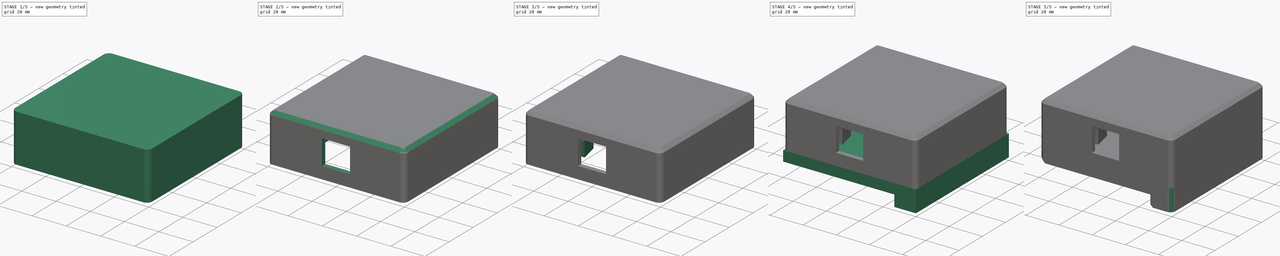
[diagram: build sequence overview — one tinted view per stage of 5, left to right]
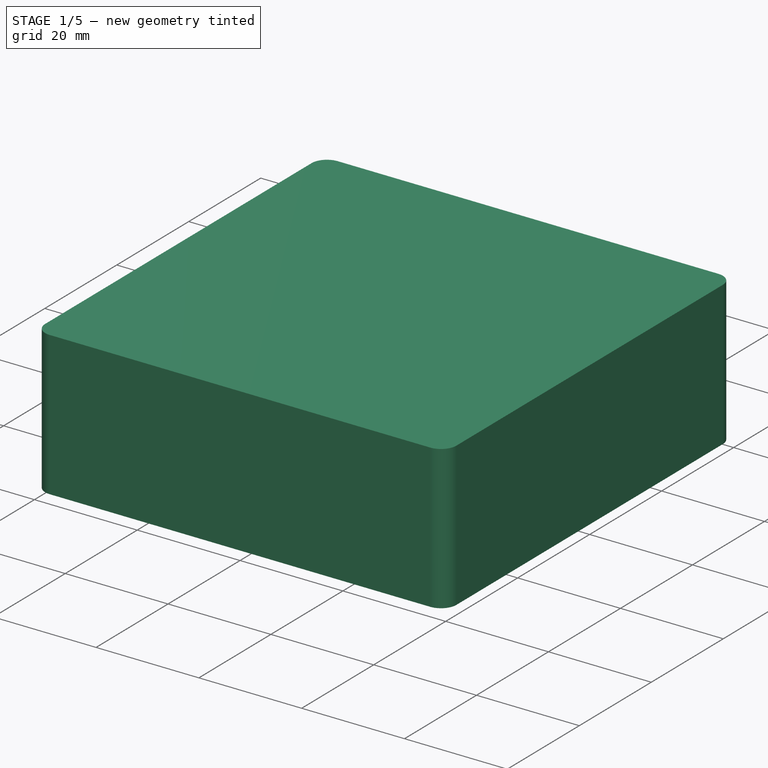
[diagram: stage 1 of 5 — iso view after this stage's code; geometry added in this stage tinted green]
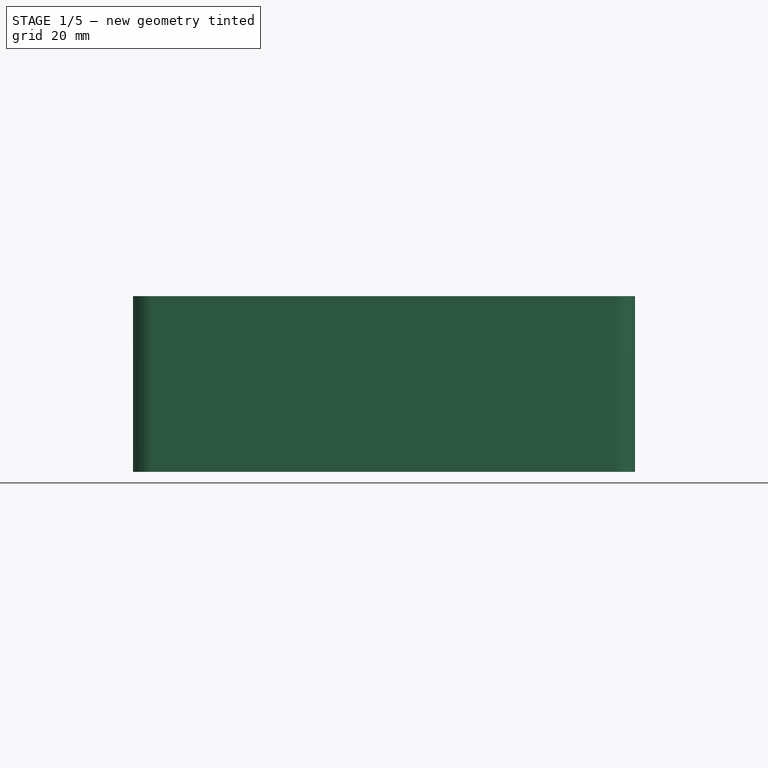
[diagram: stage 1 of 5 — front view after this stage's code; geometry added in this stage tinted green]
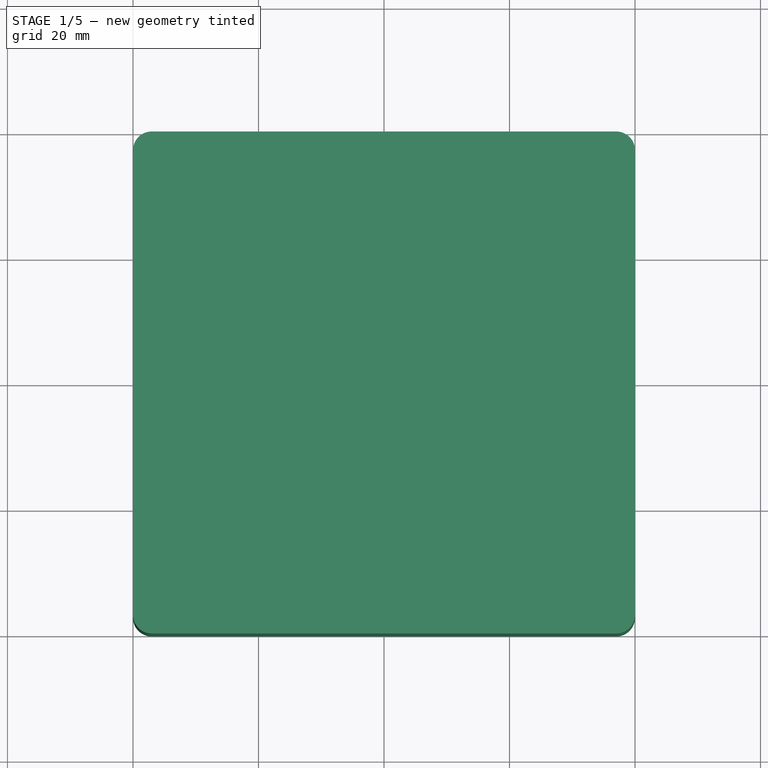
[diagram: stage 1 of 5 — top view after this stage's code; geometry added in this stage tinted green]
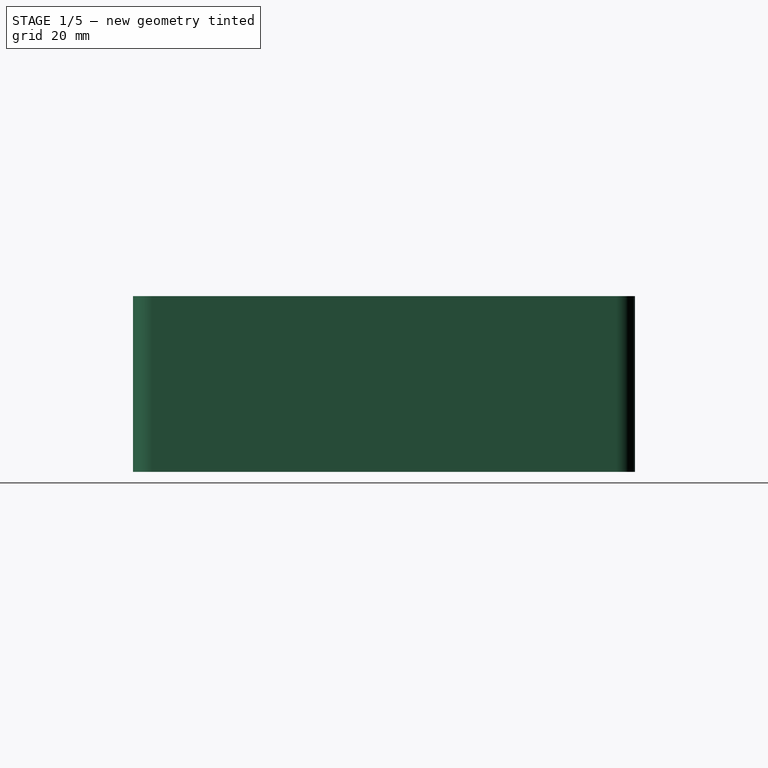
[diagram: stage 1 of 5 — right view after this stage's code; geometry added in this stage tinted green]
FCSTD DOCUMENT  (FreeCAD 0.19R22846 (Git))
Label: netzwerk_dose
License: All rights reserved
LicenseURL: http://en.wikipedia.org/wiki/All_rights_reserved
objects: Sketcher::SketchObject×15, PartDesign::Pad×7, PartDesign::Pocket×6, PartDesign::Chamfer×4, PartDesign::Fillet×3, PartDesign::Mirrored×3, PartDesign::PolarPattern×2, PartDesign::Body×2, PartDesign::SubtractivePipe×1
note: 64 computed .brp shape members not serialized (recipe doc carries the construction recipe); baked Part::Feature solids carry a one-line shape summary decoded from their .brp

FEATURE [Sketcher::SketchObject] Sketch003  label="sk_basis_deckel"
  MapMode = 5
  Support = -> [XY_Plane001]
  sketch-geometry (4):
    g0: LineSegment StartX=-40 StartY=40 StartZ=0 EndX=40 EndY=40 EndZ=0
    g1: LineSegment StartX=40 StartY=40 StartZ=0 EndX=40 EndY=-40 EndZ=0
    g2: LineSegment StartX=40 StartY=-40 StartZ=0 EndX=-40 EndY=-40 EndZ=0
    g3: LineSegment StartX=-40 StartY=-40 StartZ=0 EndX=-40 EndY=40 EndZ=0
  constraints (11):
    c: Coincident(g0,g1)
    c: Coincident(g1,g2)
    c: Coincident(g2,g3)
    c: Coincident(g3,g0)
    c: Horizontal(g0)
    c: Horizontal(g2)
    c: Vertical(g1)
    c: Vertical(g3)
    c: Equal(g3,g0)
    c: DistanceX(g0,g0) = 80
    c: Symmetric(g0,g1,g-1)
FEATURE [PartDesign::Pad] Pad002  label="deckel_block"
  Direction = (1,1,1)
  Length = 28
  Length2 = 100
  Profile = -> Sketch003
  Refine = true
  Type = 0
FEATURE [Sketcher::SketchObject] Sketch004  label="sk_deckel_loch"
  MapMode = 5
  Support = -> [XY_Plane001]
  sketch-geometry (4):
    g0: LineSegment StartX=-37.25 StartY=37.25 StartZ=0 EndX=37.25 EndY=37.25 EndZ=0
    g1: LineSegment StartX=37.25 StartY=37.25 StartZ=0 EndX=37.25 EndY=-37.25 EndZ=0
    g2: LineSegment StartX=37.25 StartY=-37.25 StartZ=0 EndX=-37.25 EndY=-37.25 EndZ=0
    g3: LineSegment StartX=-37.25 StartY=-37.25 StartZ=0 EndX=-37.25 EndY=37.25 EndZ=0
  constraints (11):
    c: Coincident(g0,g1)
    c: Coincident(g1,g2)
    c: Coincident(g2,g3)
    c: Coincident(g3,g0)
    c: Horizontal(g0)
    c: Horizontal(g2)
    c: Vertical(g1)
    c: Vertical(g3)
    c: Equal(g3,g0)
    c: DistanceX(g0,g0) = 74.5
    c: Symmetric(g0,g1,g-1)
FEATURE [PartDesign::Pocket] Pocket001  label="deckel_hohl"
  BaseFeature = -> Pad002
  Length = 25
  Length2 = 100
  Profile = -> Sketch004
  Refine = true
  Reversed = true
  Type = 0
FEATURE [Sketcher::SketchObject] Sketch005  label="sk_einschnapp_rille"
  ExternalGeometry = -> [Pocket001]
  MapMode = 5
  Placement = pos=(0,0,0) rot=(1,0,0;1.5708rad)
  Support = -> [XZ_Plane001]
  sketch-geometry (2):
    g0: ArcOfCircle CenterX=37.05 CenterY=2.95 CenterZ=0 NormalX=0 NormalY=0 NormalZ=1 AngleXU=0 Radius=0.776209 StartAngle=4.97299 EndAngle=7.59338
    g1: LineSegment StartX=37.25 StartY=3.7 StartZ=0 EndX=37.25 EndY=2.2 EndZ=0
  constraints (7):
    c: PointOnObject(g0,g-3)
    c: PointOnObject(g0,g-3)
    c: DistanceY(g0) = 3.7
    c: DistanceY(g0) = 2.2
    c: DistanceX(g0,g0) = 0.2
    c: Coincident(g1,g0)
    c: Coincident(g1,g0)
FEATURE [PartDesign::Pocket] Pocket002  label="1_einschnapprille"
  BaseFeature = -> Pocket001
  Length = 30
  Length2 = 100
  Midplane = true
  Profile = -> Sketch005
  Refine = true
  Type = 0
FEATURE [PartDesign::PolarPattern] PolarPattern001  label="4_einschnapprille"
  Angle = 360
  Axis = -> Z_Axis001
  BaseFeature = -> Pocket002
  Occurrences = 4
  Originals = -> [Pocket002]
  Refine = true
FEATURE [PartDesign::Fillet] Fillet001  label="verrundung_deckel"
  Base = -> PolarPattern001 [Edge1,Edge5,Edge2,Edge8]
  BaseFeature = -> PolarPattern001
  Radius = 3
  Refine = true
  SupportTransform = false
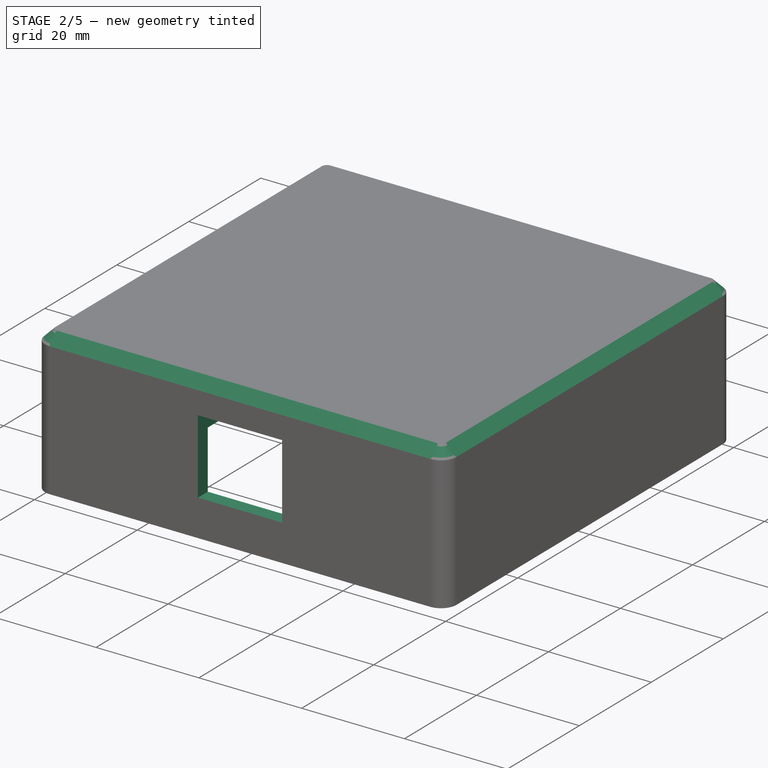
[diagram: stage 2 of 5 — iso view after this stage's code; geometry added in this stage tinted green]
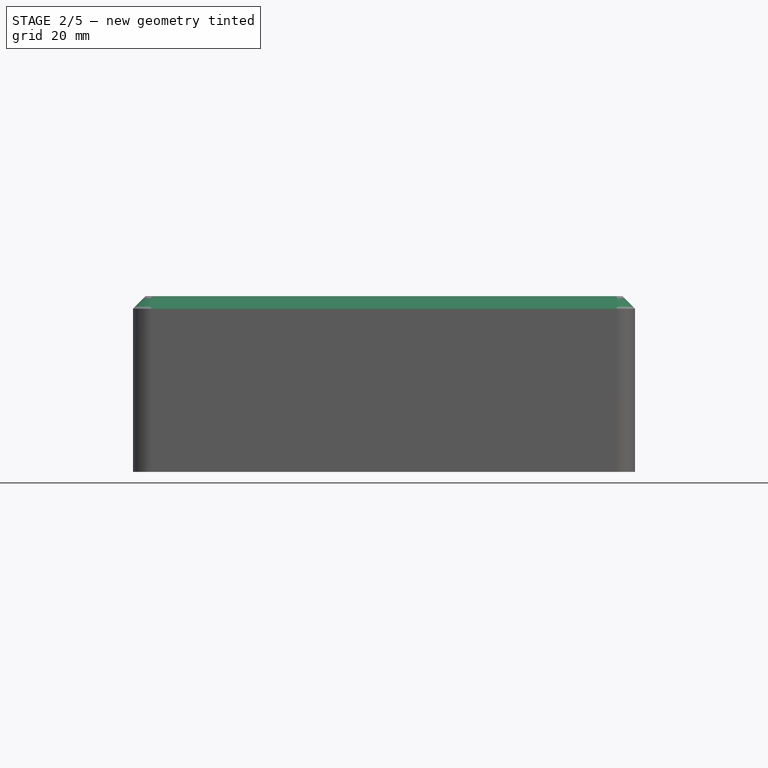
[diagram: stage 2 of 5 — front view after this stage's code; geometry added in this stage tinted green]
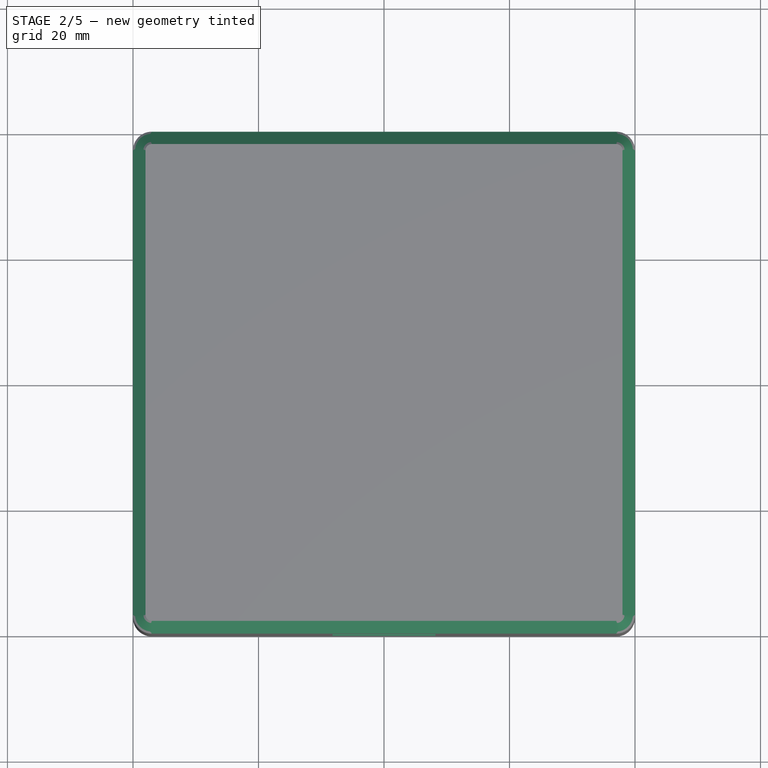
[diagram: stage 2 of 5 — top view after this stage's code; geometry added in this stage tinted green]
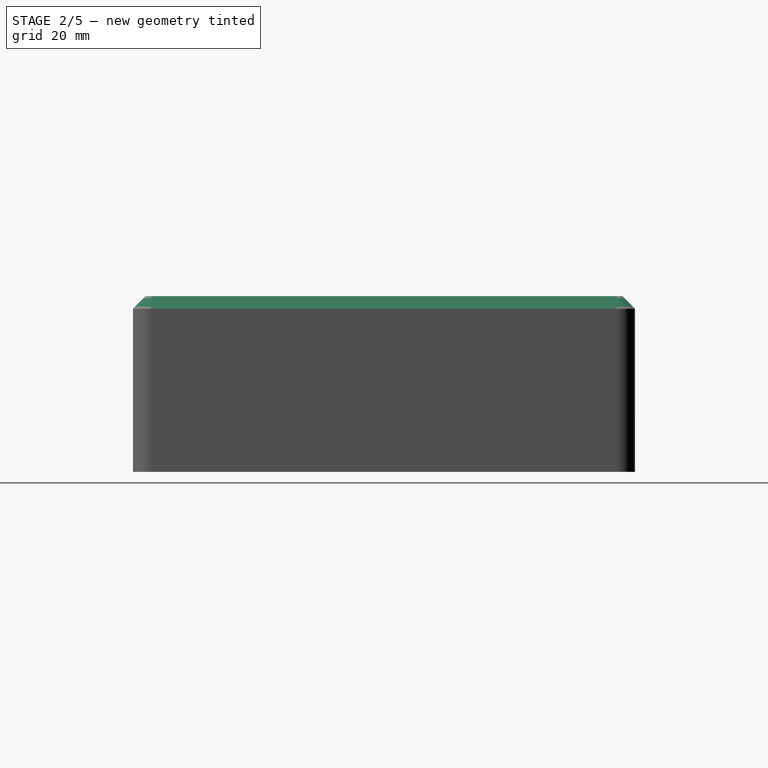
[diagram: stage 2 of 5 — right view after this stage's code; geometry added in this stage tinted green]
FEATURE [PartDesign::Chamfer] Chamfer001  label="phase_deckel"
  Angle = 45
  Base = -> Fillet001 [Face5]
  BaseFeature = -> Fillet001
  ChamferType = 0
  FlipDirection = false
  Refine = true
  Size = 2
  Size2 = 1
  SupportTransform = false
FEATURE [Sketcher::SketchObject] Sketch010  label="sk_buchse"
  ExternalGeometry = -> [Chamfer001]
  MapMode = 5
  Placement = pos=(0,-37.25,0) rot=(0,0.707107,0.707107;3.14159rad)
  Support = -> [Chamfer001]
  sketch-geometry (8):
    g0: LineSegment StartX=-8.2 StartY=7.1 StartZ=0 EndX=8.2 EndY=7.1 EndZ=0
    g1: LineSegment StartX=8.2 StartY=7.1 StartZ=0 EndX=8.2 EndY=21.6 EndZ=0
    g2: LineSegment StartX=8.2 StartY=21.6 StartZ=0 EndX=-8.2 EndY=21.6 EndZ=0
    g3: LineSegment StartX=-8.2 StartY=21.6 StartZ=0 EndX=-8.2 EndY=7.1 EndZ=0
    g4: GeomPoint X=0 Y=25 Z=0
    g5: LineSegment [constr] StartX=-8.2 StartY=7.1 StartZ=0 EndX=8.2 EndY=21.6 EndZ=0
    g6: GeomPoint X=0 Y=14.35 Z=0
    g7: GeomPoint X=0 Y=3.7 Z=0
  constraints (19):
    c: Coincident(g0,g1)
    c: Coincident(g1,g2)
    c: Coincident(g2,g3)
    c: Coincident(g3,g0)
    c: Horizontal(g2)
    c: Vertical(g1)
    c: Vertical(g3)
    c: Distance(g3) = 14.5
    c: Distance(g0) = 16.4
    c: Symmetric(g0,g0,g-2)
    c: PointOnObject(g4,g-3)
    c: PointOnObject(g4,g-2)
    c: Coincident(g5,g0)
    c: Coincident(g5,g1)
    c: PointOnObject(g6,g5)
    c: PointOnObject(g6,g-2)
    c: PointOnObject(g7,g-4)
    c: Symmetric(g7,g4,g6)
    c: DistanceY(g1,g4) = 3.4
FEATURE [PartDesign::Pocket] Pocket003  label="buchse"
  BaseFeature = -> Chamfer001
  Length = 5
  Length2 = 100
  Profile = -> Sketch010
  Refine = true
  Type = 1
FEATURE [Sketcher::SketchObject] Sketch011  label="sk_podest_stecker"
  ExternalGeometry = -> [Pocket003]
  MapMode = 5
  Placement = pos=(0,0,25) rot=(1,0,0;3.14159rad)
  Support = -> [Pocket003]
  sketch-geometry (8):
    g0: LineSegment StartX=-9.9 StartY=37.25 StartZ=0 EndX=9.9 EndY=37.25 EndZ=0
    g1: LineSegment StartX=9.9 StartY=37.25 StartZ=0 EndX=9.9 EndY=23.25 EndZ=0
    g2: LineSegment StartX=9.9 StartY=23.25 StartZ=0 EndX=-9.9 EndY=23.25 EndZ=0
    g3: LineSegment StartX=-9.9 StartY=23.25 StartZ=0 EndX=-9.9 EndY=37.25 EndZ=0
    g4: LineSegment StartX=-9.9 StartY=18.25 StartZ=0 EndX=9.9 EndY=18.25 EndZ=0
    g5: LineSegment StartX=9.9 StartY=18.25 StartZ=0 EndX=9.9 EndY=15.25 EndZ=0
    g6: LineSegment StartX=9.9 StartY=15.25 StartZ=0 EndX=-9.9 EndY=15.25 EndZ=0
    g7: LineSegment StartX=-9.9 StartY=15.25 StartZ=0 EndX=-9.9 EndY=18.25 EndZ=0
  constraints (23):
    c: Coincident(g0,g1)
    c: Coincident(g1,g2)
    c: Coincident(g2,g3)
    c: Coincident(g3,g0)
    c: Horizontal(g2)
    c: Vertical(g1)
    c: Vertical(g3)
    c: Symmetric(g0,g0,g-2)
    c: PointOnObject(g0,g-3)
    c: DistanceX(g2,g2) = 19.8
    c: DistanceY(g1,g1) = 14
    c: Coincident(g4,g5)
    c: Coincident(g5,g6)
    c: Coincident(g6,g7)
    c: Coincident(g7,g4)
    c: Horizontal(g4)
    c: Horizontal(g6)
    c: Vertical(g5)
    c: Vertical(g7)
    c: Equal(g4,g2)
    c: Vertical(g4,g2)
    c: DistanceY(g5,g0) = 22
    c: DistanceY(g6,g4) = 3
FEATURE [PartDesign::Pad] Pad003  label="podest_stecker"
  BaseFeature = -> Pocket003
  Direction = (1,1,1)
  Length = 1.5
  Length2 = 100
  Profile = -> Sketch011
  Refine = true
  Type = 0
FEATURE [Sketcher::SketchObject] Sketch012  label="sk_kabelbinder"
  ExternalGeometry = -> [Pad003]
  MapMode = 5
  Placement = pos=(0,0,25) rot=(1,0,0;3.14159rad)
  Support = -> [Pad003]
  sketch-geometry (4):
    g0: LineSegment StartX=-17.4 StartY=37.25 StartZ=0 EndX=-9.9 EndY=37.25 EndZ=0
    g1: LineSegment StartX=-9.9 StartY=37.25 StartZ=0 EndX=-9.9 EndY=15.25 EndZ=0
    g2: LineSegment StartX=-9.9 StartY=15.25 StartZ=0 EndX=-17.4 EndY=15.25 EndZ=0
    g3: LineSegment StartX=-17.4 StartY=15.25 StartZ=0 EndX=-17.4 EndY=37.25 EndZ=0
  constraints (11):
    c: Coincident(g0,g1)
    c: Coincident(g1,g2)
    c: Coincident(g2,g3)
    c: Coincident(g3,g0)
    c: Horizontal(g0)
    c: Horizontal(g2)
    c: Vertical(g1)
    c: Vertical(g3)
    c: DistanceY(g3,g3) = 22
    c: DistanceX(g2,g2) = 7.5
    c: Coincident(g-3,g0)
FEATURE [PartDesign::Pad] Pad004  label="pad_kabelbinder"
  BaseFeature = -> Pad003
  Direction = (1,1,1)
  Length = 8
  Length2 = 100
  Profile = -> Sketch012
  Refine = true
  Type = 0
FEATURE [PartDesign::Mirrored] Mirrored  label="2_pad_kabelbinder"
  BaseFeature = -> Pad004
  MirrorPlane = -> Sketch012 [V_Axis]
  Originals = -> [Pad004]
  Refine = true
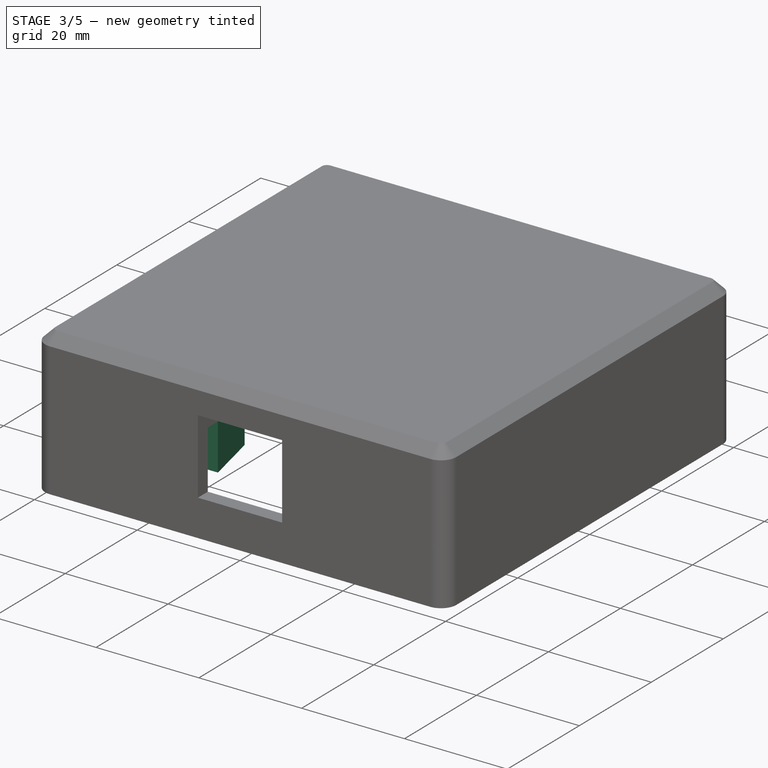
[diagram: stage 3 of 5 — iso view after this stage's code; geometry added in this stage tinted green]
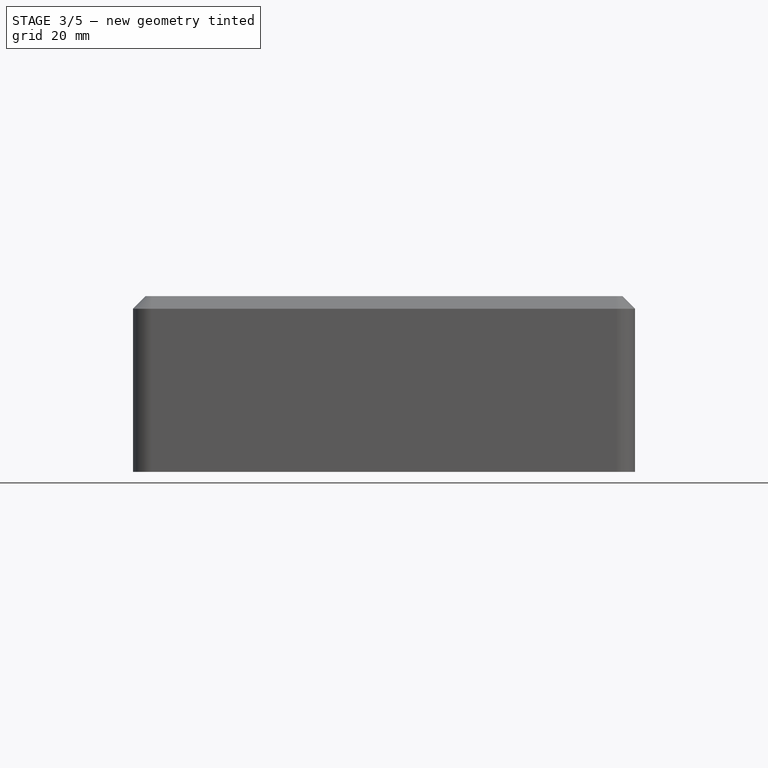
[diagram: stage 3 of 5 — front view after this stage's code; geometry added in this stage tinted green]
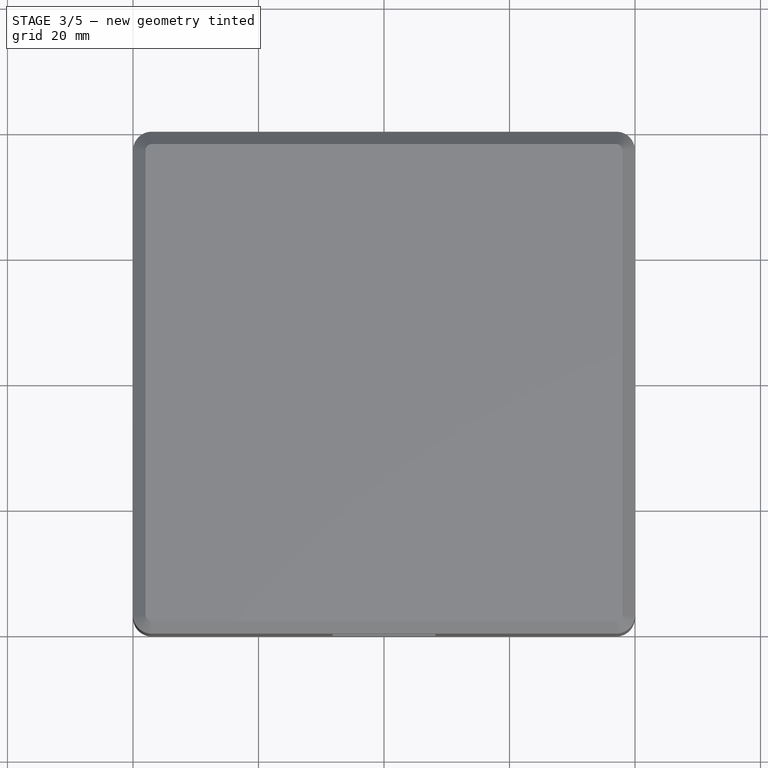
[diagram: stage 3 of 5 — top view after this stage's code; geometry added in this stage tinted green]
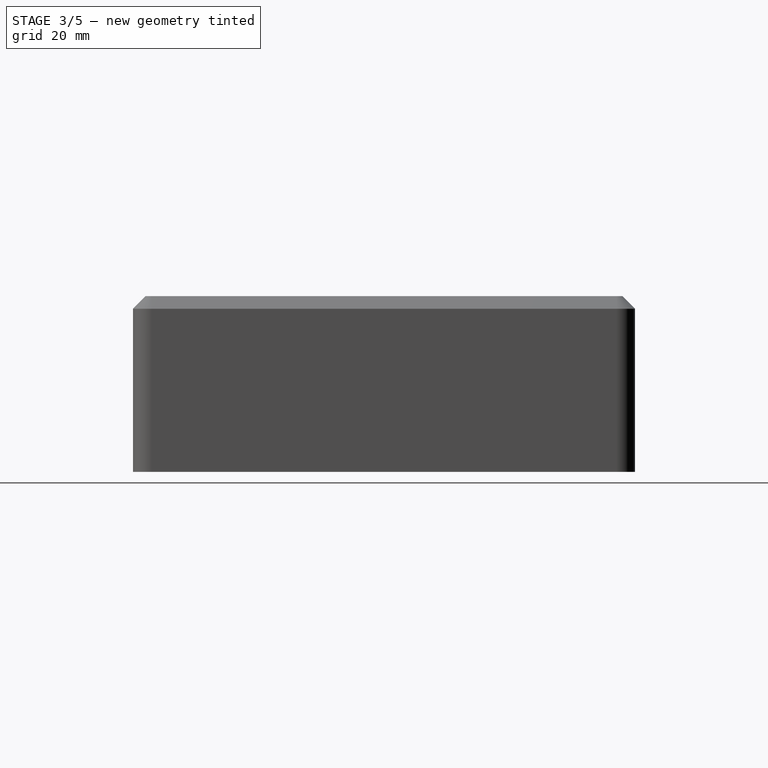
[diagram: stage 3 of 5 — right view after this stage's code; geometry added in this stage tinted green]
FEATURE [PartDesign::Body] Body  label="basis"
  Group = -> [Sketch,Pad,Sketch001,Pad001,PolarPattern,Sketch006,Pocket,Sketch008,Sketch009,SubtractivePipe,Chamfer,Fillet,Chamfer002,Sketch014,Pad005,Fillet003]
  Origin = -> Origin
  Tip = -> Fillet003
FEATURE [Sketcher::SketchObject] Sketch015  label="sk_durchfuehrung_kabelbinder"
  ExternalGeometry = -> [Mirrored]
  MapMode = 5
  Placement = pos=(0,0,0) rot=(0.57735,0.57735,0.57735;2.0944rad)
  Support = -> [YZ_Plane001]
  sketch-geometry (4):
    g0: LineSegment StartX=-23.25 StartY=25 StartZ=0 EndX=-18.25 EndY=25 EndZ=0
    g1: LineSegment StartX=-18.25 StartY=25 StartZ=0 EndX=-18.25 EndY=22.5 EndZ=0
    g2: LineSegment StartX=-18.25 StartY=22.5 StartZ=0 EndX=-23.25 EndY=22.5 EndZ=0
    g3: LineSegment StartX=-23.25 StartY=22.5 StartZ=0 EndX=-23.25 EndY=25 EndZ=0
  constraints (10):
    c: Coincident(g0,g1)
    c: Coincident(g1,g2)
    c: Coincident(g2,g3)
    c: Coincident(g3,g0)
    c: Horizontal(g2)
    c: Vertical(g1)
    c: Vertical(g3)
    c: Coincident(g0,g-3)
    c: Coincident(g0,g-4)
    c: DistanceY(g1,g1) = 2.5
FEATURE [Sketcher::SketchObject] Sketch016  label="sk_clip"
  MapMode = 5
  Placement = pos=(0,0,25) rot=(1,0,0;3.14159rad)
  sketch-geometry (6):
    g0: LineSegment StartX=-17.4 StartY=21 StartZ=0 EndX=-17.4 EndY=40 EndZ=0
    g1: LineSegment StartX=-17.4 StartY=40 StartZ=0 EndX=-13.2 EndY=40 EndZ=0
    g2: LineSegment StartX=-17.4 StartY=21 StartZ=0 EndX=-12.4 EndY=21 EndZ=0
    g3: LineSegment StartX=-9.9 StartY=32 StartZ=0 EndX=-13.2 EndY=32 EndZ=0
    g4: LineSegment StartX=-13.2 StartY=32 StartZ=0 EndX=-13.2 EndY=40 EndZ=0
    g5: LineSegment StartX=-12.4 StartY=21 StartZ=0 EndX=-9.9 EndY=32 EndZ=0
  constraints (18):
    c: Coincident(g0,g1)
    c: Horizontal(g1)
    c: Vertical(g0)
    c: DistanceX(g3,g-1) = 9.9
    c: Coincident(g2,g0)
    c: Horizontal(g2)
    c: Horizontal(g3)
    c: Coincident(g3,g4)
    c: Coincident(g4,g1)
    c: Vertical(g4)
    c: DistanceX(g0,g-1) = 17.4
    c: Coincident(g2,g5)
    c: DistanceY(g1) = 40
    c: DistanceX(g2,g2) = 5
    c: DistanceY(g4,g4) = 8
    c: DistanceY(g0,g0) = 19
    c: DistanceX(g1,g1) = 4.2
    c: Coincident(g5,g3)
FEATURE [PartDesign::Pad] Pad006  label="clip"
  BaseFeature = -> Mirrored
  Direction = (1,1,1)
  Length = 17
  Length2 = 100
  Profile = -> Sketch016
  Refine = true
  Type = 0
FEATURE [PartDesign::Chamfer] Chamfer003  label="phase_clip"
  Angle = 45
  Base = -> Pad006 [Edge127]
  BaseFeature = -> Pad006
  ChamferType = 0
  FlipDirection = false
  Refine = true
  Size = 2
  Size2 = 1
  SupportTransform = false
FEATURE [PartDesign::Mirrored] Mirrored001  label="2_clip"
  BaseFeature = -> Chamfer003
  MirrorPlane = -> Sketch016 [V_Axis]
  Originals = -> [Pad006]
  Refine = true
FEATURE [PartDesign::Mirrored] Mirrored002  label="2_phase_clip"
  BaseFeature = -> Mirrored001
  MirrorPlane = -> YZ_Plane001
  Originals = -> [Chamfer003]
  Refine = true
FEATURE [PartDesign::Pocket] Pocket004  label="loch_kabelbinder"
  BaseFeature = -> Mirrored002
  Length = 50
  Length2 = 100
  Midplane = true
  Profile = -> Sketch015
  Refine = true
  Type = 0
FEATURE [Sketcher::SketchObject] Sketch017  label="sk_aussparung_stecker"
  ExternalGeometry = -> [Pocket004]
  MapMode = 5
  Placement = pos=(0,0,17) rot=(1,0,0;3.14159rad)
  Support = -> [Pocket004]
  sketch-geometry (6):
    g0: LineSegment StartX=-9.9 StartY=32 StartZ=0 EndX=-13.7068 EndY=15.25 EndZ=0
    g1: LineSegment StartX=-13.7068 StartY=15.25 StartZ=0 EndX=-9.9 EndY=15.25 EndZ=0
    g2: LineSegment StartX=-9.9 StartY=15.25 StartZ=0 EndX=-9.9 EndY=32 EndZ=0
    g3: LineSegment StartX=9.9 StartY=32 StartZ=0 EndX=9.9 EndY=15.25 EndZ=0
    g4: LineSegment StartX=9.9 StartY=15.25 StartZ=0 EndX=13.7068 EndY=15.25 EndZ=0
    g5: LineSegment StartX=13.7068 StartY=15.25 StartZ=0 EndX=9.9 EndY=32 EndZ=0
  constraints (14):
    c: Coincident(g-4,g0)
    c: Coincident(g0,g1)
    c: Coincident(g1,g-3)
    c: Horizontal(g1)
    c: Coincident(g1,g2)
    c: Coincident(g2,g0)
    c: PointOnObject(g-4,g0)
    c: Coincident(g-6,g3)
    c: Coincident(g3,g-5)
    c: Coincident(g3,g4)
    c: Horizontal(g4)
    c: Coincident(g4,g5)
    c: Coincident(g5,g3)
    c: PointOnObject(g-6,g5)
FEATURE [PartDesign::Pocket] Pocket005  label="aussparung_stecker"
  BaseFeature = -> Pocket004
  Length = 0
  Length2 = 100
  Profile = -> Sketch017
  Refine = true
  Type = 3
  UpToFace = -> Pocket004 [Face16]
FEATURE [PartDesign::Body] Body001  label="deckel"
  Group = -> [Sketch003,Pad002,Sketch004,Pocket001,Sketch005,Pocket002,PolarPattern001,Fillet001,Chamfer001,Sketch010,Pocket003,Sketch011,Pad003,Sketch012,Pad004,Mirrored,Sketch015,Sketch016,Pad006,Chamfer003,Mirrored001,Mirrored002,Pocket004,Sketch017,Pocket005]
  Origin = -> Origin001
  Tip = -> Pocket005
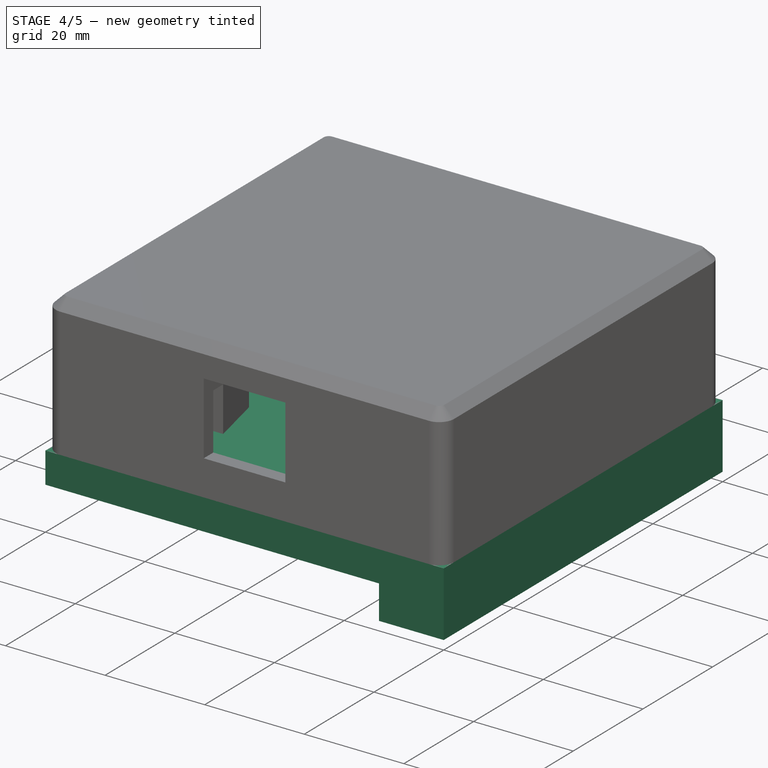
[diagram: stage 4 of 5 — iso view after this stage's code; geometry added in this stage tinted green]
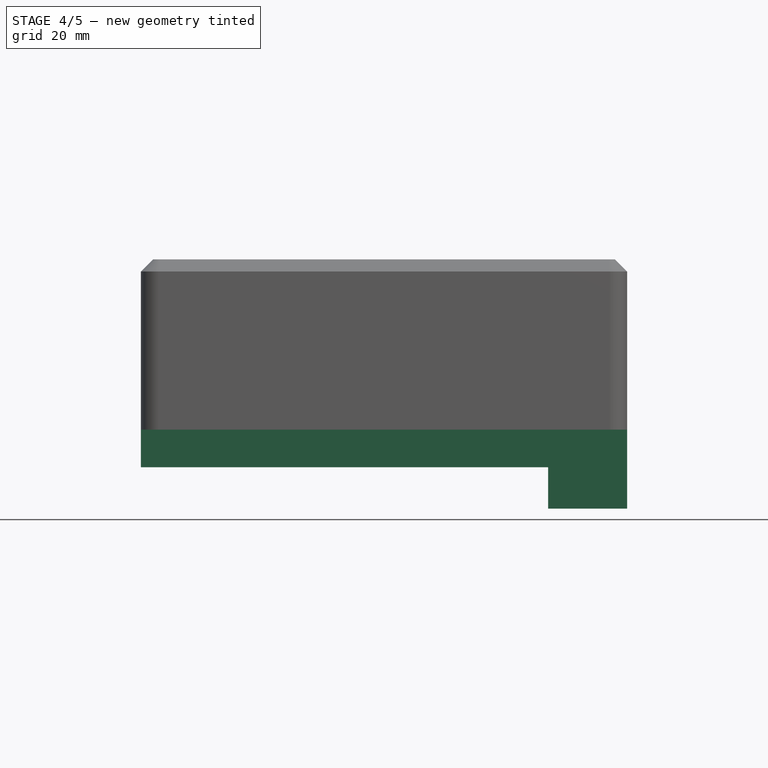
[diagram: stage 4 of 5 — front view after this stage's code; geometry added in this stage tinted green]
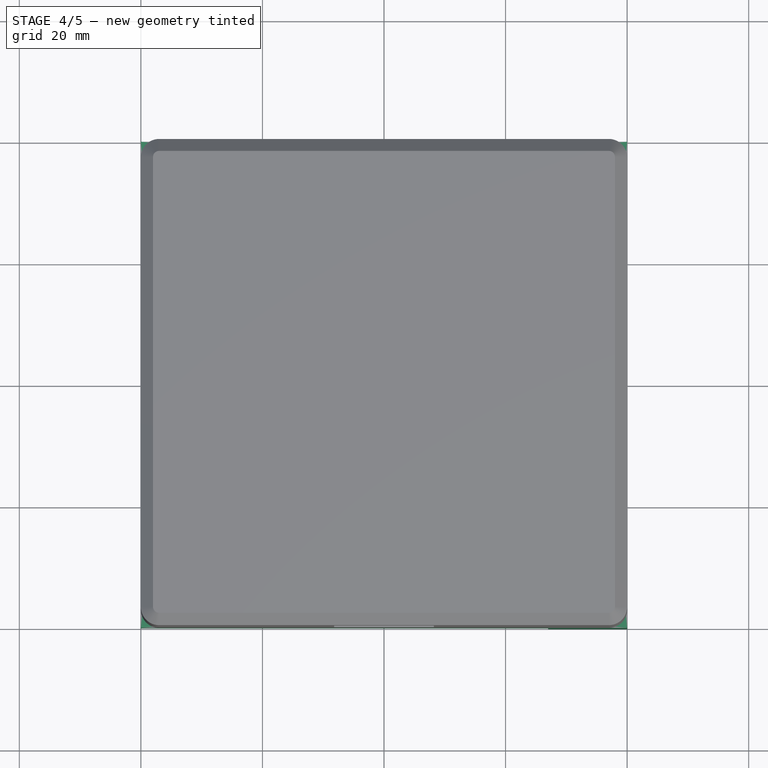
[diagram: stage 4 of 5 — top view after this stage's code; geometry added in this stage tinted green]
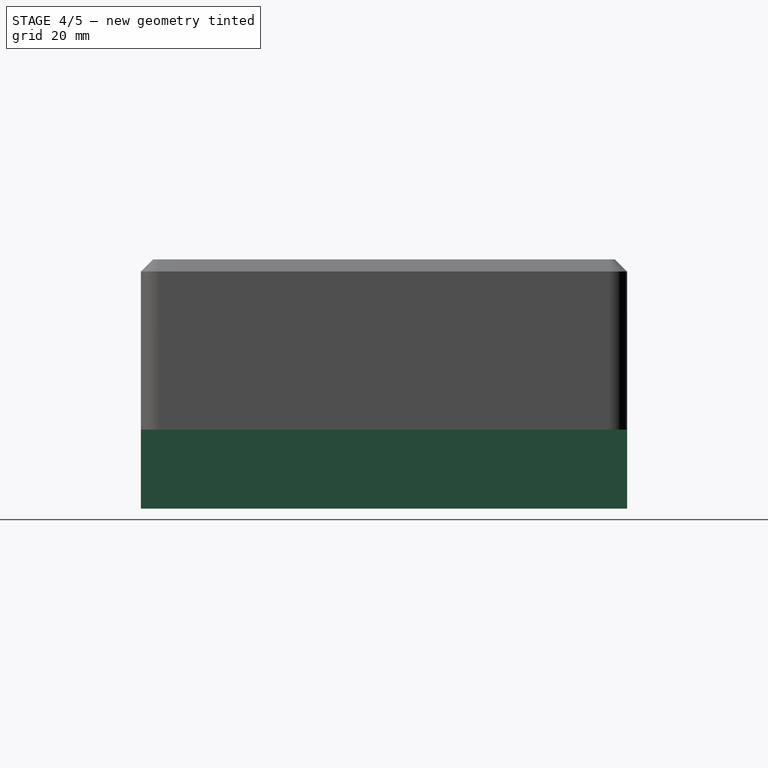
[diagram: stage 4 of 5 — right view after this stage's code; geometry added in this stage tinted green]
FEATURE [Sketcher::SketchObject] Sketch  label="sk_boden"
  MapMode = 5
  Support = -> [XY_Plane]
  sketch-geometry (4):
    g0: LineSegment StartX=-40 StartY=40 StartZ=0 EndX=40 EndY=40 EndZ=0
    g1: LineSegment StartX=40 StartY=40 StartZ=0 EndX=40 EndY=-40 EndZ=0
    g2: LineSegment StartX=40 StartY=-40 StartZ=0 EndX=-40 EndY=-40 EndZ=0
    g3: LineSegment StartX=-40 StartY=-40 StartZ=0 EndX=-40 EndY=40 EndZ=0
  constraints (11):
    c: Coincident(g0,g1)
    c: Coincident(g1,g2)
    c: Coincident(g2,g3)
    c: Coincident(g3,g0)
    c: Horizontal(g0)
    c: Horizontal(g2)
    c: Vertical(g1)
    c: Vertical(g3)
    c: Equal(g3,g0)
    c: Symmetric(g0,g1,g-1)
    c: DistanceX(g0,g0) = 80
FEATURE [PartDesign::Pad] Pad  label="boden"
  Direction = (1,1,1)
  Length = 13
  Length2 = 100
  Profile = -> Sketch
  Refine = true
  Reversed = true
  Type = 0
FEATURE [Sketcher::SketchObject] Sketch001  label="sk_klammer_profil"
  ExternalGeometry = -> [Pad]
  MapMode = 5
  Placement = pos=(0,0,0) rot=(0.57735,0.57735,0.57735;2.0944rad)
  Support = -> [YZ_Plane]
  sketch-geometry (8):
    g0: LineSegment StartX=31 StartY=0 StartZ=0 EndX=33.8568 EndY=4.51321 EndZ=0
    g1: LineSegment StartX=35.2366 StartY=4.82331 StartZ=0 EndX=37.5174 EndY=3.37958 EndZ=0
    g2: LineSegment StartX=37.6036 StartY=2.60355 StartZ=0 EndX=37 EndY=2 EndZ=0
    g3: LineSegment StartX=37 StartY=2 StartZ=0 EndX=37 EndY=0 EndZ=0
    g4: LineSegment StartX=37 StartY=0 StartZ=0 EndX=31 EndY=0 EndZ=0
    g5: ArcOfCircle CenterX=34.7018 CenterY=3.97836 CenterZ=0 NormalX=0 NormalY=0 NormalZ=1 AngleXU=0 Radius=1 StartAngle=1.00647 EndAngle=2.57727
    g6: ArcOfCircle CenterX=37.25 CenterY=2.95711 CenterZ=0 NormalX=0 NormalY=0 NormalZ=1 AngleXU=0 Radius=0.5 StartAngle=5.49779 EndAngle=7.28966
    g7: GeomPoint X=37.75 Y=2.95711 Z=0
  constraints (21):
    c: PointOnObject(g0,g-1)
    c: Coincident(g2,g3)
    c: PointOnObject(g3,g-1)
    c: Vertical(g3)
    c: Coincident(g3,g4)
    c: Coincident(g4,g0)
    c: Perpendicular(g1,g0)
    c: Angle(g3,g2) = 2.35619
    c: Tangent(g0,g5) = 1.5708
    c: Tangent(g1,g5) = 1.5708
    c: Radius(g5) = 1
    c: Tangent(g1,g6) = 1.5708
    c: Tangent(g2,g6) = 1.5708
    c: Radius(g6) = 0.5
    c: Distance(g2,g0) = 4
    c: DistanceX(g4,g4) = 6
    c: DistanceX(g3,g-3) = 3
    c: DistanceY(g3,g3) = 2
    c: PointOnObject(g7,g6)
    c: Horizontal(g7,g6)
    c: DistanceX(g7,g-3) = 2.25
FEATURE [PartDesign::Pad] Pad001  label="1_klammer"
  BaseFeature = -> Pad
  Direction = (1,1,1)
  Length = 17.5
  Length2 = 100
  Midplane = true
  Profile = -> Sketch001
  Refine = true
  Type = 0
FEATURE [PartDesign::PolarPattern] PolarPattern  label="4_klammer"
  Angle = 360
  Axis = -> Z_Axis
  BaseFeature = -> Pad001
  Occurrences = 4
  Originals = -> [Pad001]
  Refine = true
FEATURE [Sketcher::SketchObject] Sketch006  label="sk_fliesenaussparung"
  ExternalGeometry = -> [PolarPattern]
  MapMode = 5
  Placement = pos=(0,0,0) rot=(1,0,0;1.5708rad)
  Support = -> [XZ_Plane]
  sketch-geometry (4):
    g0: LineSegment StartX=-40 StartY=-6.2 StartZ=0 EndX=27 EndY=-6.2 EndZ=0
    g1: LineSegment StartX=27 StartY=-6.2 StartZ=0 EndX=27 EndY=-13 EndZ=0
    g2: LineSegment StartX=27 StartY=-13 StartZ=0 EndX=-40 EndY=-13 EndZ=0
    g3: LineSegment StartX=-40 StartY=-13 StartZ=0 EndX=-40 EndY=-6.2 EndZ=0
  constraints (11):
    c: Coincident(g0,g1)
    c: Coincident(g1,g2)
    c: Coincident(g2,g3)
    c: Coincident(g3,g0)
    c: Horizontal(g0)
    c: Horizontal(g2)
    c: Vertical(g1)
    c: Vertical(g3)
    c: Coincident(g2,g-3)
    c: DistanceY(g3,g3) = 6.8
    c: DistanceX(g2,g2) = 67
FEATURE [PartDesign::Pocket] Pocket  label="aussparung_fliese"
  BaseFeature = -> PolarPattern
  Length = 5
  Length2 = 100
  Midplane = true
  Profile = -> Sketch006
  Refine = true
  Type = 1
FEATURE [Sketcher::SketchObject] Sketch008  label="sk_loch_kabel"
  ExternalGeometry = -> [Pocket]
  MapMode = 5
  Placement = pos=(0,0,-13) rot=(1,0,0;3.14159rad)
  Support = -> [Pocket]
  sketch-geometry (4):
    g0: LineSegment StartX=27 StartY=4.5 StartZ=0 EndX=36 EndY=4.5 EndZ=0
    g1: LineSegment StartX=36 StartY=4.5 StartZ=0 EndX=36 EndY=-4.5 EndZ=0
    g2: LineSegment StartX=36 StartY=-4.5 StartZ=0 EndX=27 EndY=-4.5 EndZ=0
    g3: LineSegment StartX=27 StartY=-4.5 StartZ=0 EndX=27 EndY=4.5 EndZ=0
  constraints (11):
    c: Coincident(g0,g1)
    c: Coincident(g1,g2)
    c: Coincident(g2,g3)
    c: Coincident(g3,g0)
    c: Horizontal(g0)
    c: Horizontal(g2)
    c: Vertical(g1)
    c: PointOnObject(g0,g-3)
    c: Equal(g2,g1)
    c: DistanceX(g2,g2) = 9
    c: Symmetric(g2,g0,g-1)
FEATURE [Sketcher::SketchObject] Sketch009  label="sk_pfad"
  ExternalGeometry = -> [Sketch008]
  MapMode = 5
  Placement = pos=(0,0,0) rot=(1,0,0;1.5708rad)
  Support = -> [XZ_Plane]
  sketch-geometry (3):
    g0: LineSegment StartX=31.5 StartY=-13 StartZ=0 EndX=31.5 EndY=-6.4202 EndZ=0
    g1: LineSegment StartX=30.8969 StartY=-3 StartZ=0 EndX=26.1653 EndY=10 EndZ=0
    g2: ArcOfCircle CenterX=21.5 CenterY=-6.4202 CenterZ=0 NormalX=0 NormalY=0 NormalZ=1 AngleXU=0 Radius=10 StartAngle=0 EndAngle=0.349066
  constraints (8):
    c: Vertical(g0)
    c: Tangent(g0,g2) = -1.5708
    c: Tangent(g1,g2) = -1.5708
    c: Radius(g2) = 10
    c: Symmetric(g-3,g-3,g0)
    c: Angle(g1,g0) = 2.79253
    c: DistanceY(g1) = 10
    c: DistanceY(g1) = -3
FEATURE [PartDesign::SubtractivePipe] SubtractivePipe  label="kabeldurchfuehrung"
  AuxilleryCurvelinear = true
  AuxillerySpineTangent = false
  BaseFeature = -> Pocket
  Binormal = (0,0,0)
  Mode = 0
  Profile = -> Sketch008
  Refine = true
  Spine = -> Sketch009
  SpineTangent = false
  Transformation = 0
  Transition = 2
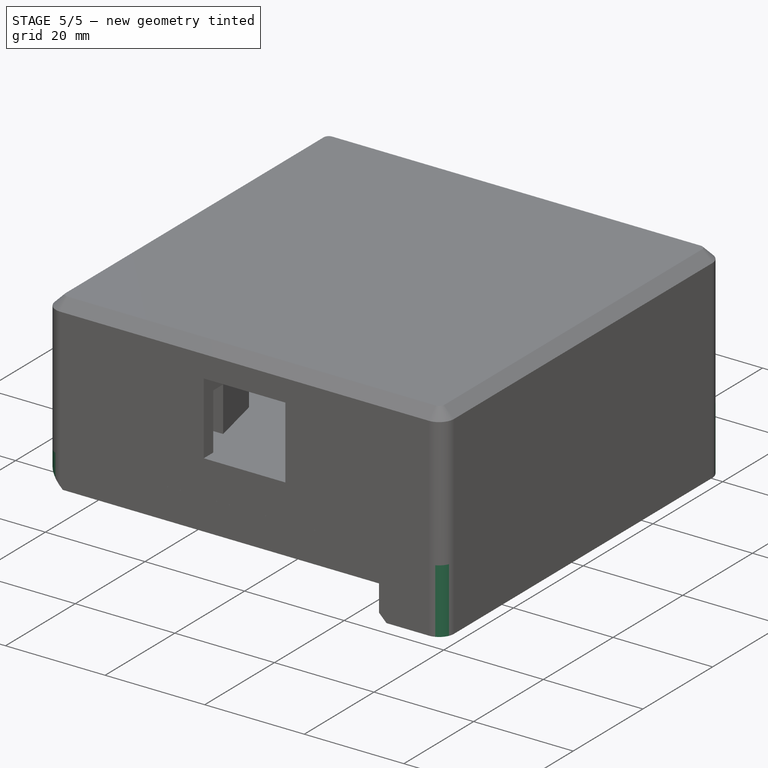
[diagram: stage 5 of 5 — iso view after this stage's code; geometry added in this stage tinted green]
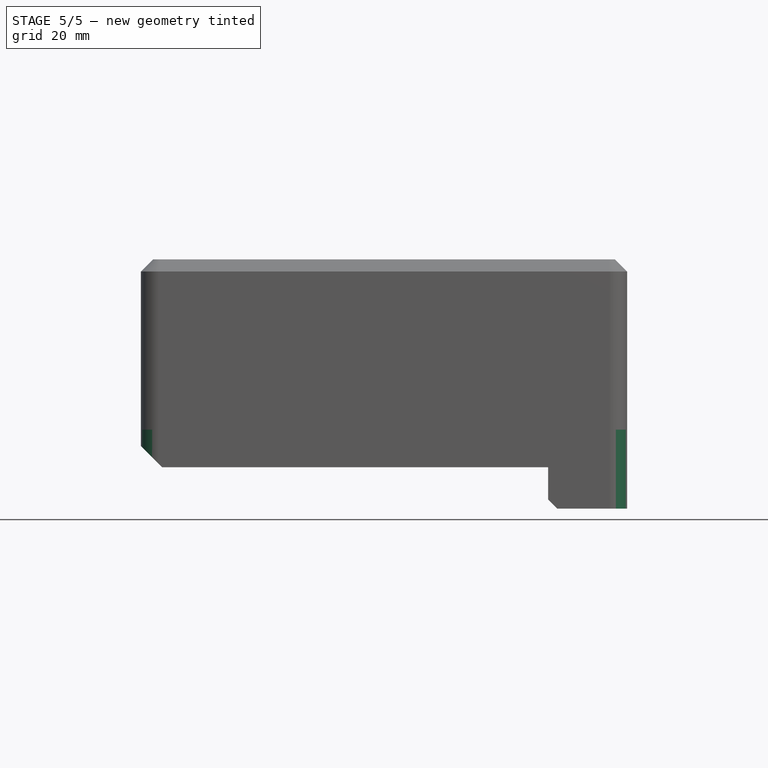
[diagram: stage 5 of 5 — front view after this stage's code; geometry added in this stage tinted green]
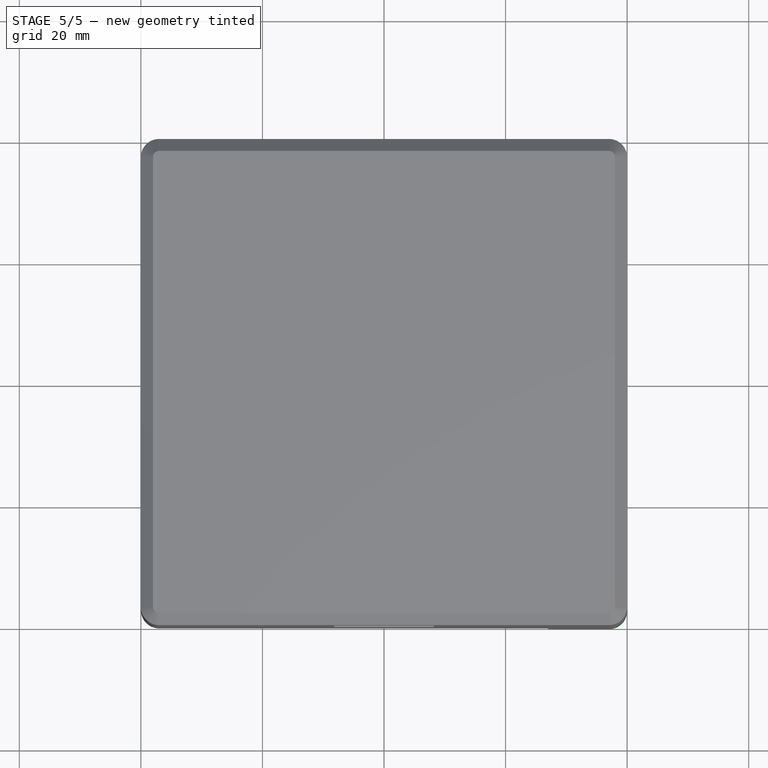
[diagram: stage 5 of 5 — top view after this stage's code; geometry added in this stage tinted green]
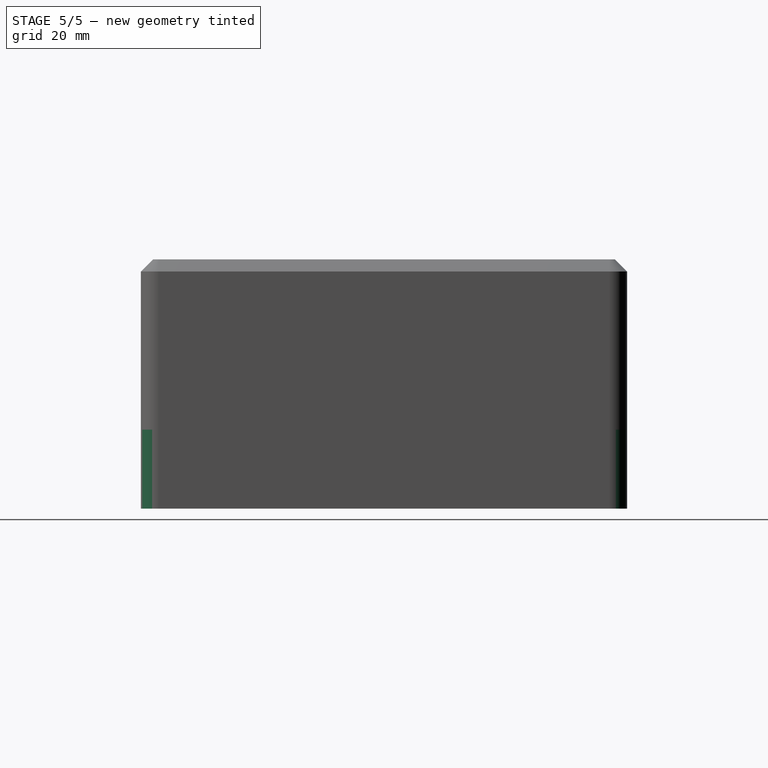
[diagram: stage 5 of 5 — right view after this stage's code; geometry added in this stage tinted green]
FEATURE [PartDesign::Chamfer] Chamfer  label="aussparung_fuge_boden"
  Angle = 45
  Base = -> SubtractivePipe [Edge44]
  BaseFeature = -> SubtractivePipe
  ChamferType = 0
  FlipDirection = false
  Refine = true
  Size = 3.5
  Size2 = 1
  SupportTransform = false
FEATURE [PartDesign::Fillet] Fillet  label="verrundung_basis"
  Base = -> Chamfer [Edge49,Edge7,Edge4,Edge20]
  BaseFeature = -> Chamfer
  Radius = 3
  Refine = true
  SupportTransform = false
FEATURE [PartDesign::Chamfer] Chamfer002  label="aussparung_fuge_wand"
  Angle = 45
  Base = -> Fillet [Edge47,Edge53]
  BaseFeature = -> Fillet
  ChamferType = 0
  FlipDirection = false
  Refine = true
  Size = 1.5
  Size2 = 1
  SupportTransform = false
FEATURE [Sketcher::SketchObject] Sketch014  label="sk_lippe"
  MapMode = 5
  Support = -> [XY_Plane]
  sketch-geometry (8):
    g0: LineSegment StartX=-37 StartY=37 StartZ=0 EndX=37 EndY=37 EndZ=0
    g1: LineSegment StartX=37 StartY=37 StartZ=0 EndX=37 EndY=-37 EndZ=0
    g2: LineSegment StartX=37 StartY=-37 StartZ=0 EndX=-37 EndY=-37 EndZ=0
    g3: LineSegment StartX=-37 StartY=-37 StartZ=0 EndX=-37 EndY=37 EndZ=0
    g4: LineSegment StartX=-34.6 StartY=34.6 StartZ=0 EndX=34.6 EndY=34.6 EndZ=0
    g5: LineSegment StartX=34.6 StartY=34.6 StartZ=0 EndX=34.6 EndY=-34.6 EndZ=0
    g6: LineSegment StartX=34.6 StartY=-34.6 StartZ=0 EndX=-34.6 EndY=-34.6 EndZ=0
    g7: LineSegment StartX=-34.6 StartY=-34.6 StartZ=0 EndX=-34.6 EndY=34.6 EndZ=0
  constraints (22):
    c: Coincident(g0,g1)
    c: Coincident(g1,g2)
    c: Coincident(g2,g3)
    c: Coincident(g3,g0)
    c: Horizontal(g0)
    c: Horizontal(g2)
    c: Vertical(g1)
    c: Vertical(g3)
    c: Equal(g0,g3)
    c: DistanceX(g0,g0) = 74
    c: Symmetric(g0,g1,g-1)
    c: Coincident(g4,g5)
    c: Coincident(g5,g6)
    c: Coincident(g6,g7)
    c: Coincident(g7,g4)
    c: Horizontal(g4)
    c: Horizontal(g6)
    c: Vertical(g5)
    c: Vertical(g7)
    c: Equal(g4,g5)
    c: Symmetric(g4,g5,g-1)
    c: DistanceY(g4,g0) = 2.4
FEATURE [PartDesign::Pad] Pad005  label="lippe"
  BaseFeature = -> Chamfer002
  Direction = (1,1,1)
  Length = 2
  Length2 = 100
  Profile = -> Sketch014
  Refine = true
  Type = 0
FEATURE [PartDesign::Fillet] Fillet003  label="verrundung_lippe"
  Base = -> Pad005 [Edge188,Edge190,Edge189,Edge187]
  BaseFeature = -> Pad005
  Radius = 3
  Refine = true
  SupportTransform = false
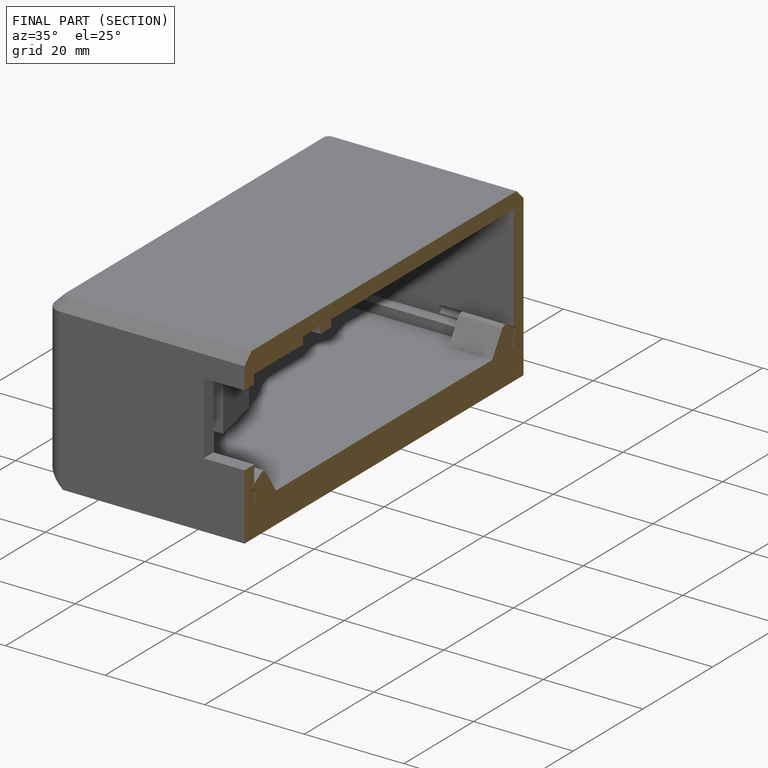
[diagram: finished part — half-section view (interior)]
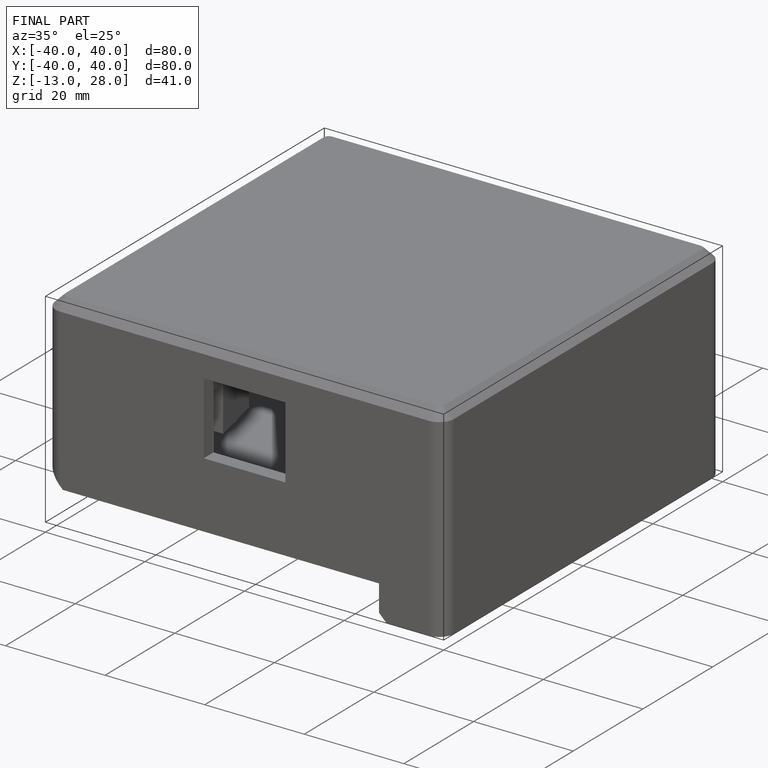
[diagram: finished part — iso view with bounding-box wireframe]
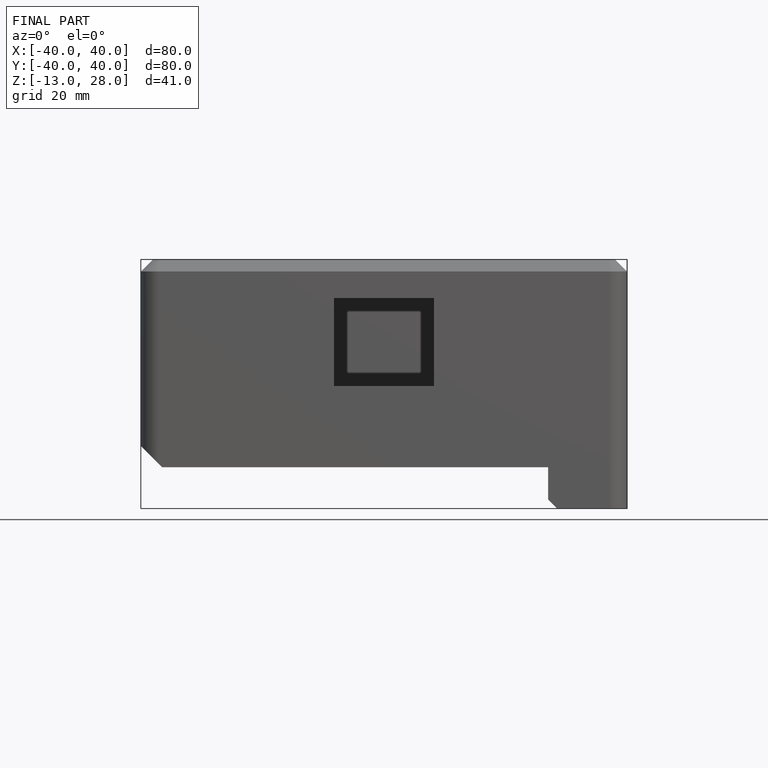
[diagram: finished part — front view with bounding-box wireframe]
